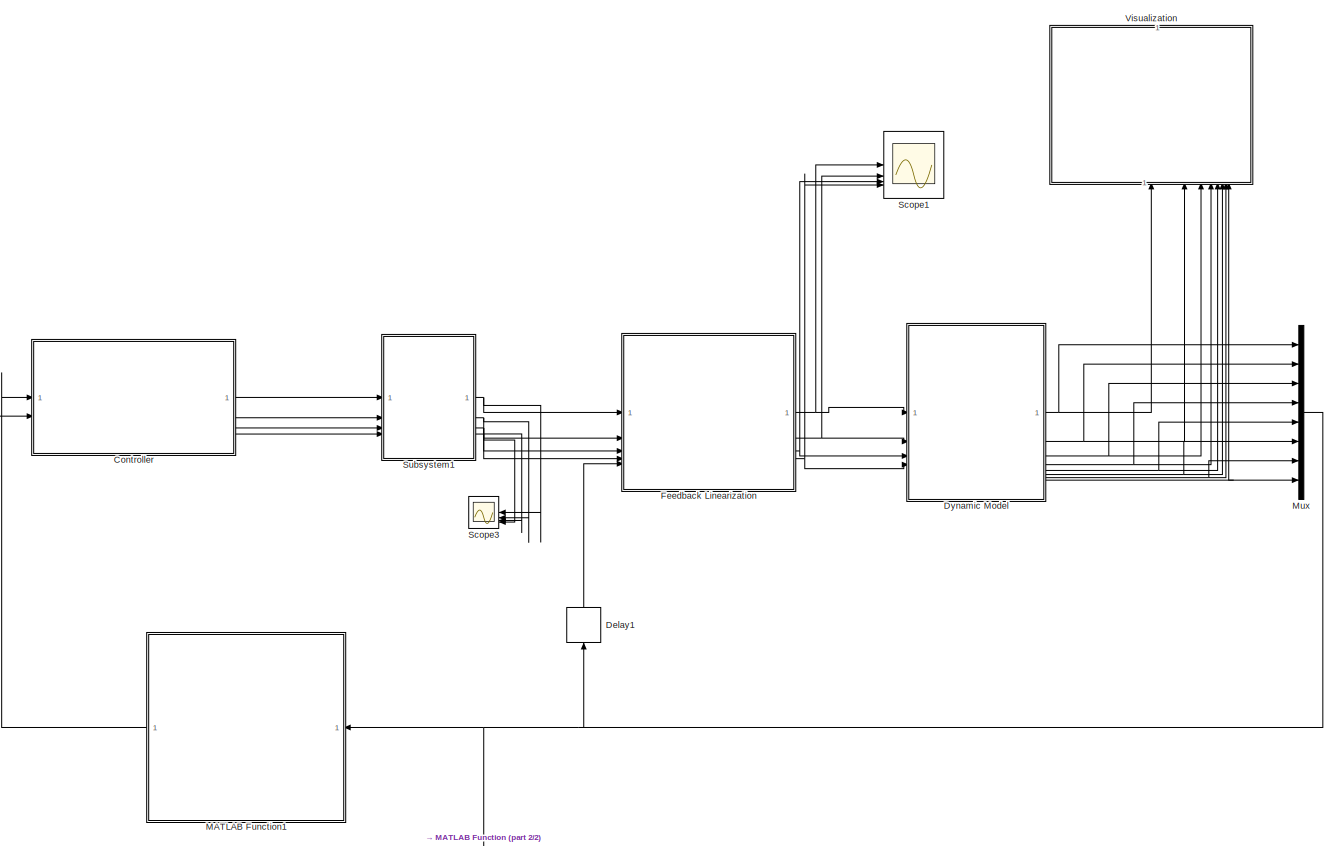
[diagram: root canvas - part 1/2, center side, full height]
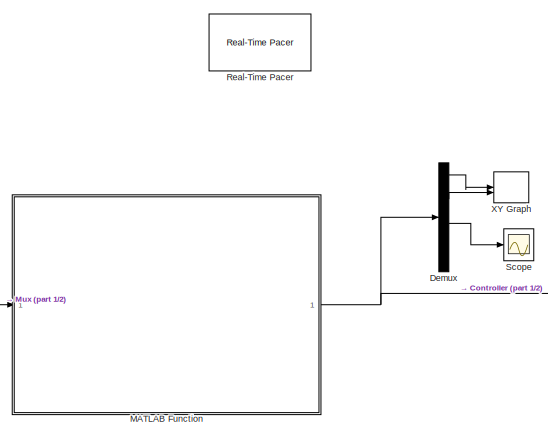
[diagram: root canvas - part 2/2, middle left region]
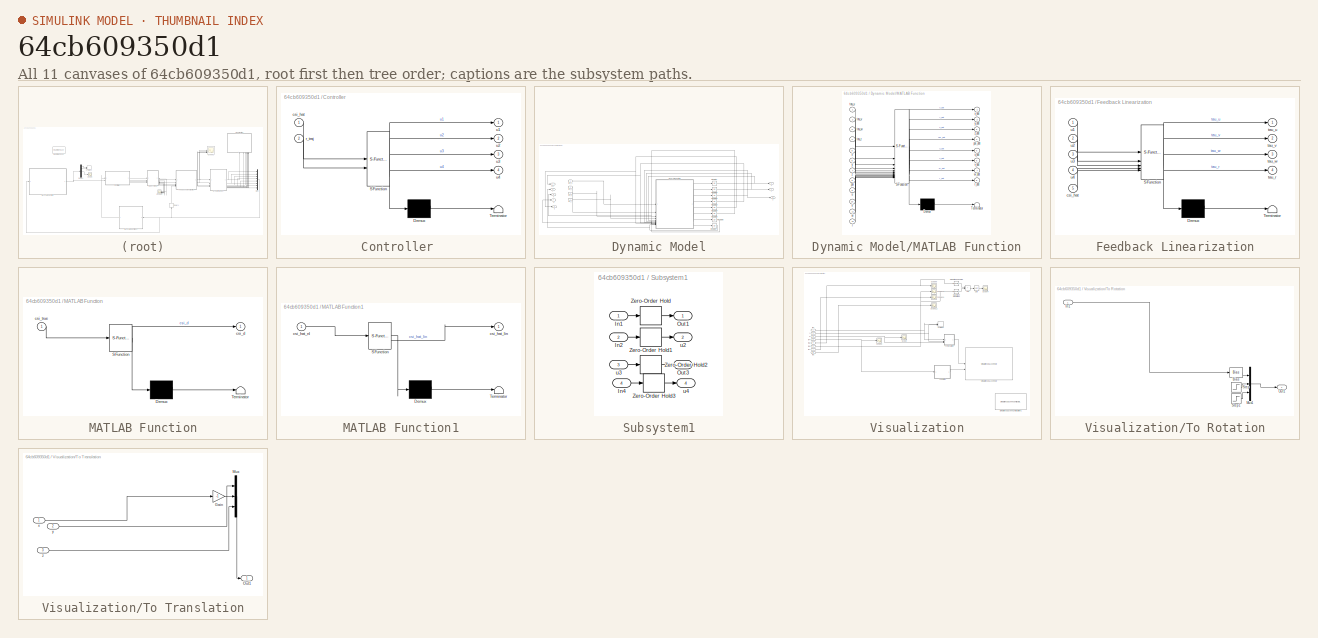
[diagram: thumbnail index - all 11 canvases of the model, root first then tree order]
MODEL slx_64cb609350d1
KIND model
CONFIG AbsTol = auto
CONFIG EnableMultiTasking = off
CONFIG FixedStep = auto
CONFIG MaxStep = auto
CONFIG MinStep = auto
CONFIG RelTol = 1e-3
CONFIG SampleTimeConstraint = Unconstrained
CONFIG SolverName = VariableStepAuto
CONFIG StartTime = 0.0
CONFIG StopTime = 50
BLOCK [SubSystem] Controller 
  ErrorFcn = Stateflow.Translate.translate
  LibrarySourceBlock = simulink/User-Defined\nFunctions/MATLAB Function
  PermitHierarchicalResolution = ExplicitOnly
  SFBlockType = MATLAB Function
  TreatAsAtomicUnit = on
BLOCK [Demux] Controller / Demux 
  Outputs = 1
BLOCK [S-Function] Controller / SFunction 
  EnableBusSupport = on
  FunctionName = sf_sfun
  Parameters = dt
  PortCounts = [2 5]
  SFcnIsStateOwnerBlock = off
  SFunctionDeploymentMode = off
  Tag = Stateflow S-Function 4
BLOCK [Terminator] Controller / Terminator 
BLOCK [Inport] Controller /csi_hat
BLOCK [Inport] Controller /r_traj
  Port = 2
BLOCK [Outport] Controller /u1
BLOCK [Outport] Controller /u2
  Port = 2
BLOCK [Outport] Controller /u3
  Port = 3
BLOCK [Outport] Controller /u4
  Port = 4
BLOCK [Delay] Delay1
  DelayLength = 1
  InitialCondition = [0 0 0 0 0 0 0 0]'
  InputPortMap = u0
  NameLocation = right
  SampleTime = dt
BLOCK [Demux] Demux
  Outputs = 8
BLOCK [SubSystem] Dynamic Model
BLOCK [Integrator] Dynamic Model/Integrator
BLOCK [Integrator] Dynamic Model/Integrator1
BLOCK [Integrator] Dynamic Model/Integrator2
BLOCK [Integrator] Dynamic Model/Integrator3
BLOCK [Integrator] Dynamic Model/Integrator4
BLOCK [Integrator] Dynamic Model/Integrator5
BLOCK [Integrator] Dynamic Model/Integrator6
BLOCK [Integrator] Dynamic Model/Integrator7
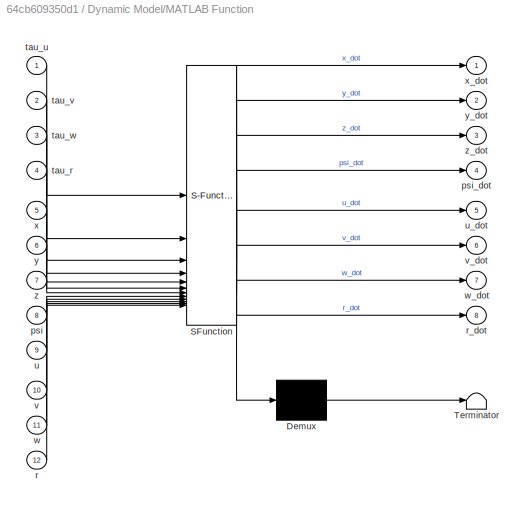
BLOCK [SubSystem] Dynamic Model/MATLAB Function
  ErrorFcn = Stateflow.Translate.translate
  LibrarySourceBlock = simulink/User-Defined\nFunctions/MATLAB Function
  PermitHierarchicalResolution = ExplicitOnly
  SFBlockType = MATLAB Function
  TreatAsAtomicUnit = on
BLOCK [Demux] Dynamic Model/MATLAB Function/ Demux 
  Outputs = 1
BLOCK [S-Function] Dynamic Model/MATLAB Function/ SFunction 
  EnableBusSupport = on
  FunctionName = sf_sfun
  PortCounts = [12 9]
  SFcnIsStateOwnerBlock = off
  SFunctionDeploymentMode = off
  Tag = Stateflow S-Function 2
BLOCK [Terminator] Dynamic Model/MATLAB Function/ Terminator 
BLOCK [Inport] Dynamic Model/MATLAB Function/psi
  Port = 8
BLOCK [Outport] Dynamic Model/MATLAB Function/psi_dot
  Port = 4
BLOCK [Inport] Dynamic Model/MATLAB Function/r
  Port = 12
BLOCK [Outport] Dynamic Model/MATLAB Function/r_dot
  Port = 8
BLOCK [Inport] Dynamic Model/MATLAB Function/tau_r
  Port = 4
BLOCK [Inport] Dynamic Model/MATLAB Function/tau_u
BLOCK [Inport] Dynamic Model/MATLAB Function/tau_v
  Port = 2
BLOCK [Inport] Dynamic Model/MATLAB Function/tau_w
  Port = 3
BLOCK [Inport] Dynamic Model/MATLAB Function/u
  Port = 9
BLOCK [Outport] Dynamic Model/MATLAB Function/u_dot
  Port = 5
BLOCK [Inport] Dynamic Model/MATLAB Function/v
  Port = 10
BLOCK [Outport] Dynamic Model/MATLAB Function/v_dot
  Port = 6
BLOCK [Inport] Dynamic Model/MATLAB Function/w
  Port = 11
BLOCK [Outport] Dynamic Model/MATLAB Function/w_dot
  Port = 7
BLOCK [Inport] Dynamic Model/MATLAB Function/x
  Port = 5
BLOCK [Outport] Dynamic Model/MATLAB Function/x_dot
BLOCK [Inport] Dynamic Model/MATLAB Function/y
  Port = 6
BLOCK [Outport] Dynamic Model/MATLAB Function/y_dot
  Port = 2
BLOCK [Inport] Dynamic Model/MATLAB Function/z
  Port = 7
BLOCK [Outport] Dynamic Model/MATLAB Function/z_dot
  Port = 3
BLOCK [Outport] Dynamic Model/psi
  Port = 4
BLOCK [Outport] Dynamic Model/r
  Port = 8
BLOCK [Inport] Dynamic Model/tau_r
  Port = 4
BLOCK [Inport] Dynamic Model/tau_u
BLOCK [Inport] Dynamic Model/tau_v
  Port = 2
BLOCK [Inport] Dynamic Model/tau_w
  Port = 3
BLOCK [Outport] Dynamic Model/u
  Port = 5
BLOCK [Outport] Dynamic Model/v
  Port = 6
BLOCK [Outport] Dynamic Model/w
  Port = 7
BLOCK [Outport] Dynamic Model/x
BLOCK [Outport] Dynamic Model/y
  Port = 2
BLOCK [Outport] Dynamic Model/z
  Port = 3
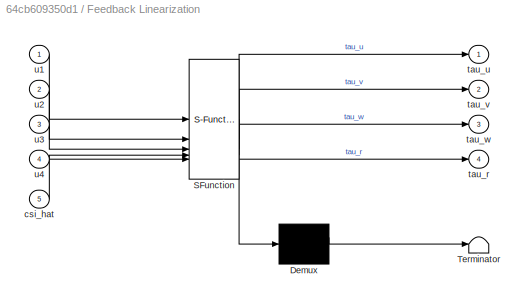
BLOCK [SubSystem] Feedback Linearization
  ErrorFcn = Stateflow.Translate.translate
  LibrarySourceBlock = simulink/User-Defined\nFunctions/MATLAB Function
  PermitHierarchicalResolution = ExplicitOnly
  SFBlockType = MATLAB Function
  TreatAsAtomicUnit = on
BLOCK [Demux] Feedback Linearization/ Demux 
  Outputs = 1
BLOCK [S-Function] Feedback Linearization/ SFunction 
  EnableBusSupport = on
  FunctionName = sf_sfun
  PortCounts = [5 5]
  SFcnIsStateOwnerBlock = off
  SFunctionDeploymentMode = off
  Tag = Stateflow S-Function 1
BLOCK [Terminator] Feedback Linearization/ Terminator 
BLOCK [Inport] Feedback Linearization/csi_hat
  Port = 5
BLOCK [Outport] Feedback Linearization/tau_r
  Port = 4
BLOCK [Outport] Feedback Linearization/tau_u
BLOCK [Outport] Feedback Linearization/tau_v
  Port = 2
BLOCK [Outport] Feedback Linearization/tau_w
  Port = 3
BLOCK [Inport] Feedback Linearization/u1
BLOCK [Inport] Feedback Linearization/u2
  Port = 2
BLOCK [Inport] Feedback Linearization/u3
  Port = 3
BLOCK [Inport] Feedback Linearization/u4
  Port = 4
BLOCK [SubSystem] MATLAB Function
  ErrorFcn = Stateflow.Translate.translate
  LibrarySourceBlock = simulink/User-Defined\nFunctions/MATLAB Function
  PermitHierarchicalResolution = ExplicitOnly
  SFBlockType = MATLAB Function
  TreatAsAtomicUnit = on
BLOCK [Demux] MATLAB Function/ Demux 
  Outputs = 1
BLOCK [S-Function] MATLAB Function/ SFunction 
  EnableBusSupport = on
  FunctionName = sf_sfun
  Parameters = t0
  PortCounts = [1 2]
  SFcnIsStateOwnerBlock = off
  SFunctionDeploymentMode = off
  Tag = Stateflow S-Function 3
BLOCK [Terminator] MATLAB Function/ Terminator 
BLOCK [Outport] MATLAB Function/csi_d
BLOCK [Inport] MATLAB Function/csi_true
BLOCK [SubSystem] MATLAB Function1
  ErrorFcn = Stateflow.Translate.translate
  LibrarySourceBlock = simulink/User-Defined\nFunctions/MATLAB Function
  NameLocation = top
  PermitHierarchicalResolution = ExplicitOnly
  SFBlockType = MATLAB Function
  TreatAsAtomicUnit = on
BLOCK [Demux] MATLAB Function1/ Demux 
  Outputs = 1
BLOCK [S-Function] MATLAB Function1/ SFunction 
  EnableBusSupport = on
  FunctionName = sf_sfun
  PortCounts = [1 2]
  SFcnIsStateOwnerBlock = off
  SFunctionDeploymentMode = off
  Tag = Stateflow S-Function 5
BLOCK [Terminator] MATLAB Function1/ Terminator 
BLOCK [Outport] MATLAB Function1/csi_hat_lin
BLOCK [Inport] MATLAB Function1/csi_hat_nl
BLOCK [Mux] Mux
  DisplayOption = bar
  Inputs = 8
BLOCK [Reference] Real-Time Pacer  REF=realtime_pacer_lib/Real-Time Pacer
  SourceBlock = realtime_pacer_lib/Real-Time Pacer
  SourceType = RealTime_Pacer
BLOCK [Scope] Scope
  Floating = off
  NumInputPorts = 1
  ScopeSpecificationString = Simulink.scopes.TimeScopeBlockCfg('CurrentConfiguration', extmgr.ConfigurationSet(extmgr.Configuration('Core','General UI',true),extmgr.Configuration('Core','Source UI',true),extmgr.Configuration('Sources','WiredSimulink',true,'DataLoggingVariableName','ScopeData1'),extmgr.Configuration('Visuals','Time Domain',true,'SerializedDisplays',{struct('MinYLimReal','2.4783','MaxYLimReal','2.52134','YLabel...<+1414ch>
BLOCK [Scope] Scope1
  Floating = off
  NumInputPorts = 4
  ScopeSpecificationString = Simulink.scopes.TimeScopeBlockCfg('CurrentConfiguration', extmgr.ConfigurationSet(extmgr.Configuration('Core','General UI',true),extmgr.Configuration('Core','Source UI',true),extmgr.Configuration('Sources','WiredSimulink',true,'DataLoggingVariableName','ScopeData7'),extmgr.Configuration('Visuals','Time Domain',true,'SerializedDisplays',{struct('MinYLimReal','-3.0755','MaxYLimReal','19.54977','YLab...<+3681ch>
BLOCK [Scope] Scope3
  Floating = off
  NameLocation = top
  NumInputPorts = 4
  ScopeSpecificationString = Simulink.scopes.TimeScopeBlockCfg('CurrentConfiguration', extmgr.ConfigurationSet(extmgr.Configuration('Core','General UI',true),extmgr.Configuration('Core','Source UI',true),extmgr.Configuration('Sources','WiredSimulink',true,'DataLoggingVariableName','ScopeData1'),extmgr.Configuration('Visuals','Time Domain',true,'SerializedDisplays',{struct('MinYLimReal','-0.16585','MaxYLimReal','1.12197','YLab...<+3589ch>
BLOCK [SubSystem] Subsystem1
BLOCK [Inport] Subsystem1/In1
BLOCK [Inport] Subsystem1/In2
  Port = 2
BLOCK [Inport] Subsystem1/In4
  Port = 4
BLOCK [Outport] Subsystem1/Out1
BLOCK [Outport] Subsystem1/Out3
  Port = 3
BLOCK [ZeroOrderHold] Subsystem1/Zero-Order Hold
  SampleTime = dt
BLOCK [ZeroOrderHold] Subsystem1/Zero-Order Hold1
  SampleTime = dt
BLOCK [ZeroOrderHold] Subsystem1/Zero-Order Hold2
  SampleTime = dt
BLOCK [ZeroOrderHold] Subsystem1/Zero-Order Hold3
  SampleTime = dt
BLOCK [Outport] Subsystem1/u2
  Port = 2
BLOCK [Inport] Subsystem1/u3
  Port = 3
BLOCK [Outport] Subsystem1/u4
  Port = 4
BLOCK [SubSystem] Visualization
  NameLocation = right
BLOCK [Sum] Visualization/Add
  IconShape = rectangular
BLOCK [Inport] Visualization/In1
BLOCK [Inport] Visualization/In4
  Port = 4
BLOCK [Inport] Visualization/In5
  Port = 5
BLOCK [Inport] Visualization/In6
  Port = 6
BLOCK [Inport] Visualization/In7
  Port = 7
BLOCK [Inport] Visualization/In8
  Port = 8
BLOCK [Math] Visualization/Magnitude Squared
  Operator = magnitude^2
BLOCK [Math] Visualization/Magnitude Squared1
  Operator = magnitude^2
BLOCK [Scope] Visualization/Scope
  Floating = off
  NameLocation = right
  NumInputPorts = 1
  ScopeSpecificationString = Simulink.scopes.TimeScopeBlockCfg('CurrentConfiguration', extmgr.ConfigurationSet(extmgr.Configuration('Core','General UI',true),extmgr.Configuration('Core','Source UI',true),extmgr.Configuration('Sources','WiredSimulink',true,'DataLoggingVariableName','ScopeData1'),extmgr.Configuration('Visuals','Time Domain',true,'SerializedDisplays',{struct('MinYLimReal','-0.49396','MaxYLimReal','4.44561','YLab...<+1433ch>
BLOCK [Scope] Visualization/Scope10
  Floating = off
  NameLocation = right
  NumInputPorts = 1
  ScopeSpecificationString = Simulink.scopes.TimeScopeBlockCfg('CurrentConfiguration', extmgr.ConfigurationSet(extmgr.Configuration('Core','General UI',true),extmgr.Configuration('Core','Source UI',true),extmgr.Configuration('Sources','WiredSimulink',true,'DataLoggingVariableName','ScopeData2'),extmgr.Configuration('Visuals','Time Domain',true,'SerializedDisplays',{struct('MinYLimReal','-0.30172','MaxYLimReal','0.29875','YLab...<+1418ch>
BLOCK [Scope] Visualization/Scope11
  Floating = off
  NameLocation = right
  NumInputPorts = 1
  ScopeSpecificationString = Simulink.scopes.TimeScopeBlockCfg('CurrentConfiguration', extmgr.ConfigurationSet(extmgr.Configuration('Core','General UI',true),extmgr.Configuration('Core','Source UI',true),extmgr.Configuration('Sources','WiredSimulink',true,'DataLoggingVariableName','ScopeData3'),extmgr.Configuration('Visuals','Time Domain',true,'SerializedDisplays',{struct('MinYLimReal','-0.04025','MaxYLimReal','0.36226','YLab...<+1420ch>
BLOCK [Scope] Visualization/Scope12
  Floating = off
  NameLocation = right
  NumInputPorts = 1
  ScopeSpecificationString = Simulink.scopes.TimeScopeBlockCfg('CurrentConfiguration', extmgr.ConfigurationSet(extmgr.Configuration('Core','General UI',true),extmgr.Configuration('Core','Source UI',true),extmgr.Configuration('Sources','WiredSimulink',true,'DataLoggingVariableName','ScopeData4'),extmgr.Configuration('Visuals','Time Domain',true,'SerializedDisplays',{struct('MinYLimReal','-0.12112','MaxYLimReal','0.11908','YLab...<+1420ch>
BLOCK [Scope] Visualization/Scope2
  Floating = off
  NameLocation = right
  NumInputPorts = 1
  ScopeSpecificationString = Simulink.scopes.TimeScopeBlockCfg('CurrentConfiguration', extmgr.ConfigurationSet(extmgr.Configuration('Core','General UI',true),extmgr.Configuration('Core','Source UI',true),extmgr.Configuration('Sources','WiredSimulink',true,'DataLoggingVariableName','ScopeData5'),extmgr.Configuration('Visuals','Time Domain',true,'SerializedDisplays',{struct('MinYLimReal','-0.30722','MaxYLimReal','1.00908','YLab...<+1416ch>
BLOCK [Scope] Visualization/Scope4
  Floating = off
  NumInputPorts = 1
  ScopeSpecificationString = Simulink.scopes.TimeScopeBlockCfg('CurrentConfiguration', extmgr.ConfigurationSet(extmgr.Configuration('Core','General UI',true),extmgr.Configuration('Core','Source UI',true),extmgr.Configuration('Sources','WiredSimulink',true,'DataLoggingVariableName','ScopeData1'),extmgr.Configuration('Visuals','Time Domain',true,'SerializedDisplays',{struct('MinYLimReal','-0.05754','MaxYLimReal','0.51785','YLab...<+1421ch>
BLOCK [Scope] Visualization/Scope9
  Floating = off
  NumInputPorts = 1
  ScopeSpecificationString = Simulink.scopes.TimeScopeBlockCfg('CurrentConfiguration', extmgr.ConfigurationSet(extmgr.Configuration('Core','General UI',true),extmgr.Configuration('Core','Source UI',true),extmgr.Configuration('Sources','WiredSimulink',true,'DataLoggingVariableName','ScopeData6'),extmgr.Configuration('Visuals','Time Domain',true,'SerializedDisplays',{struct('MinYLimReal','-0.05921','MaxYLimReal','0.53288','YLab...<+1538ch>
BLOCK [Reference] Visualization/Simulation 3D Scene Configuration1  REF=sim3dlib/Simulation 3D Scene Configuration
  LibrarySourceBlock = sl3dlib/Simulation 3D/Simulation 3D Scene Configuration
  Priority = 0
  SourceBlock = sim3dlib/Simulation 3D Scene Configuration
  SourceType = Simulation 3D Scene Configuration
BLOCK [Reference] Visualization/Simulation 3D UAV Vehicle  REF=uavsim3dlib/Simulation 3D UAV Vehicle
  Priority = -1
  SourceBlock = uavsim3dlib/Simulation 3D UAV Vehicle
  SourceType = Simulation 3D UAV Vehicle
BLOCK [Sqrt] Visualization/Sqrt
BLOCK [SubSystem] Visualization/To Rotation
BLOCK [Bias] Visualization/To Rotation/Bias
  Bias = -pi/2
  SaturateOnIntegerOverflow = off
BLOCK [Inport] Visualization/To Rotation/In1
BLOCK [Mux] Visualization/To Rotation/Mux1
  DisplayOption = bar
  Inputs = 3
BLOCK [Outport] Visualization/To Rotation/Out1
BLOCK [Step] Visualization/To Rotation/Step
  After = 0
  SampleTime = 0
BLOCK [Step] Visualization/To Rotation/Step1
  After = 0
  SampleTime = 0
BLOCK [SubSystem] Visualization/To Translation
BLOCK [Gain] Visualization/To Translation/Gain
  Gain = -1
BLOCK [Mux] Visualization/To Translation/Mux
  DisplayOption = bar
  Inputs = 3
BLOCK [Outport] Visualization/To Translation/Out1
BLOCK [Inport] Visualization/To Translation/x
BLOCK [Inport] Visualization/To Translation/y
  Port = 2
BLOCK [Inport] Visualization/To Translation/z
  Port = 3
BLOCK [Record] Visualization/XY Graph
  CompatibilityTag = XY
  FileSettingsInternal = {"entries":[{"content":{"excelSettings":{"content":{},"type":"Streamout.ExcelSettings"}},"type":"Streamout.FileSettingStorage","uuid":""}],"packageUris":["http:\/\/schema.mathworks.com\/mf0\/streamout_blocks\/R2020a"],"version":"1.0"}
  Layout = [1 1]
  SignalsInternal = {"entries":[{"content":{"signals":[{"content":{"blockPath":[],"channel":[],"dimensions":[1,1],"domain":"","lineColor":"#0072bd","plots":[1],"port":1,"sid":[""],"signalID":10906,"signalName":"In1"},"type":"RecordBlkView.Signal","uuid":""},{"content":{"blockPath":[],"channel":[],"dimensions":[1,1],"domain":"","lineColor":"#d95319","plots":[1],"port":2,"sid":[""],"signalID":10910,"signalName":"y"},"t...<+184ch>
  VisualizationBindings = {"xyplotplugin":{"info":[{"series":[{"bindingParametersList":[{"parameter":"X-Axis","signalID":10906,"signalName":"In1"},{"parameter":"Y-Axis","signalID":10910,"signalName":"y"}],"seriesID":32775}],"subplotID":1}]}}
BLOCK [Inport] Visualization/y
  Port = 2
BLOCK [Inport] Visualization/z
  Port = 3
BLOCK [Record] XY Graph
  CompatibilityTag = XY
  FileSettingsInternal = {"entries":[{"content":{"excelSettings":{"content":{},"type":"Streamout.ExcelSettings"}},"type":"Streamout.FileSettingStorage","uuid":""}],"packageUris":["http:\/\/schema.mathworks.com\/mf0\/streamout_blocks\/R2020a"],"version":"1.0"}
  Layout = [1 1]
  SignalsInternal = {"entries":[{"content":{"signals":[{"content":{"blockPath":[],"channel":[],"dimensions":[1,1],"domain":"","lineColor":"#a2142f","plots":[1],"port":1,"sid":[""],"signalID":10914,"signalName":"Demux:1"},"type":"RecordBlkView.Signal","uuid":""},{"content":{"blockPath":[],"channel":[],"dimensions":[1,1],"domain":"","lineColor":"#139fff","plots":[1],"port":2,"sid":[""],"signalID":10918,"signalName":"De...<+194ch>
  VisualizationBindings = {"xyplotplugin":{"info":[{"series":[{"bindingParametersList":[{"parameter":"X-Axis","signalID":10914,"signalName":"Demux:1"},{"parameter":"Y-Axis","signalID":10918,"signalName":"Demux:3"}],"seriesID":62600}],"subplotID":1}]}}
LINE Controller :1 -> Subsystem1:1
LINE Controller :2 -> Subsystem1:2
LINE Controller :3 -> Subsystem1:3
LINE Controller :4 -> Subsystem1:4
LINE Delay1:1 -> Feedback Linearization:5
LINE Demux:1 -> XY Graph:1
LINE Demux:3 -> XY Graph:2
LINE Demux:5 -> Scope:1
NET Dynamic Model/Integrator1:1 -> Dynamic Model/MATLAB Function:6, Dynamic Model/y:1
NET Dynamic Model/Integrator2:1 -> Dynamic Model/MATLAB Function:7, Dynamic Model/z:1
NET Dynamic Model/Integrator3:1 -> Dynamic Model/MATLAB Function:8, Dynamic Model/psi:1
NET Dynamic Model/Integrator4:1 -> Dynamic Model/MATLAB Function:9, Dynamic Model/u:1
NET Dynamic Model/Integrator5:1 -> Dynamic Model/MATLAB Function:10, Dynamic Model/v:1
NET Dynamic Model/Integrator6:1 -> Dynamic Model/MATLAB Function:11, Dynamic Model/w:1
NET Dynamic Model/Integrator7:1 -> Dynamic Model/MATLAB Function:12, Dynamic Model/r:1
NET Dynamic Model/Integrator:1 -> Dynamic Model/MATLAB Function:5, Dynamic Model/x:1
LINE Dynamic Model/MATLAB Function:1 -> Dynamic Model/Integrator:1
LINE Dynamic Model/MATLAB Function:2 -> Dynamic Model/Integrator1:1
LINE Dynamic Model/MATLAB Function:3 -> Dynamic Model/Integrator2:1
LINE Dynamic Model/MATLAB Function:4 -> Dynamic Model/Integrator3:1
LINE Dynamic Model/MATLAB Function:5 -> Dynamic Model/Integrator4:1
LINE Dynamic Model/MATLAB Function:6 -> Dynamic Model/Integrator5:1
LINE Dynamic Model/MATLAB Function:7 -> Dynamic Model/Integrator6:1
LINE Dynamic Model/MATLAB Function:8 -> Dynamic Model/Integrator7:1
LINE Dynamic Model/tau_r:1 -> Dynamic Model/MATLAB Function:4
LINE Dynamic Model/tau_u:1 -> Dynamic Model/MATLAB Function:1
LINE Dynamic Model/tau_v:1 -> Dynamic Model/MATLAB Function:2
LINE Dynamic Model/tau_w:1 -> Dynamic Model/MATLAB Function:3
NET Dynamic Model:1 -> Mux:1, Visualization:1
NET Dynamic Model:2 -> Mux:2, Visualization:2
NET Dynamic Model:3 -> Mux:3, Visualization:3
NET Dynamic Model:4 -> Mux:4, Visualization:4
NET Dynamic Model:5 -> Mux:5, Visualization:5
NET Dynamic Model:6 -> Mux:6, Visualization:6
NET Dynamic Model:7 -> Mux:7, Visualization:7
NET Dynamic Model:8 -> Mux:8, Visualization:8
NET Feedback Linearization:1 -> Dynamic Model:1, Scope1:1
NET Feedback Linearization:2 -> Dynamic Model:2, Scope1:2
NET Feedback Linearization:3 -> Dynamic Model:3, Scope1:3
NET Feedback Linearization:4 -> Dynamic Model:4, Scope1:4
LINE MATLAB Function1:1 -> Controller :1
NET MATLAB Function:1 -> Controller :2, Demux:1
NET Mux:1 -> Delay1:1, MATLAB Function1:1, MATLAB Function:1
LINE Subsystem1/In1:1 -> Subsystem1/Zero-Order Hold:1
LINE Subsystem1/In2:1 -> Subsystem1/Zero-Order Hold1:1
LINE Subsystem1/In4:1 -> Subsystem1/Zero-Order Hold3:1
LINE Subsystem1/Zero-Order Hold1:1 -> Subsystem1/u2:1
LINE Subsystem1/Zero-Order Hold2:1 -> Subsystem1/Out3:1
LINE Subsystem1/Zero-Order Hold3:1 -> Subsystem1/u4:1
LINE Subsystem1/Zero-Order Hold:1 -> Subsystem1/Out1:1
LINE Subsystem1/u3:1 -> Subsystem1/Zero-Order Hold2:1
NET Subsystem1:1 -> Feedback Linearization:1, Scope3:1
NET Subsystem1:2 -> Feedback Linearization:2, Scope3:2
NET Subsystem1:3 -> Feedback Linearization:3, Scope3:3
NET Subsystem1:4 -> Feedback Linearization:4, Scope3:4
LINE Visualization/Add:1 -> Visualization/Sqrt:1
NET Visualization/In1:1 -> Visualization/To Translation:1, Visualization/XY Graph:1
NET Visualization/In4:1 -> Visualization/Scope2:1, Visualization/To Rotation:1
NET Visualization/In5:1 -> Visualization/Magnitude Squared:1, Visualization/Scope9:1
NET Visualization/In6:1 -> Visualization/Magnitude Squared1:1, Visualization/Scope10:1
LINE Visualization/In7:1 -> Visualization/Scope11:1
LINE Visualization/In8:1 -> Visualization/Scope12:1
LINE Visualization/Magnitude Squared1:1 -> Visualization/Add:2
LINE Visualization/Magnitude Squared:1 -> Visualization/Add:1
LINE Visualization/Sqrt:1 -> Visualization/Scope4:1
LINE Visualization/To Rotation/Bias:1 -> Visualization/To Rotation/Mux1:1
LINE Visualization/To Rotation/In1:1 -> Visualization/To Rotation/Bias:1
LINE Visualization/To Rotation/Mux1:1 -> Visualization/To Rotation/Out1:1
LINE Visualization/To Rotation/Step1:1 -> Visualization/To Rotation/Mux1:3
LINE Visualization/To Rotation/Step:1 -> Visualization/To Rotation/Mux1:2
LINE Visualization/To Rotation:1 -> Visualization/Simulation 3D UAV Vehicle:2
LINE Visualization/To Translation/Gain:1 -> Visualization/To Translation/Mux:2
LINE Visualization/To Translation/Mux:1 -> Visualization/To Translation/Out1:1
LINE Visualization/To Translation/x:1 -> Visualization/To Translation/Gain:1
LINE Visualization/To Translation/y:1 -> Visualization/To Translation/Mux:1
LINE Visualization/To Translation/z:1 -> Visualization/To Translation/Mux:3
LINE Visualization/To Translation:1 -> Visualization/Simulation 3D UAV Vehicle:1
NET Visualization/y:1 -> Visualization/To Translation:2, Visualization/XY Graph:2
NET Visualization/z:1 -> Visualization/Scope:1, Visualization/To Translation:3
note: NET lines group one-source signal fan-out (src -> all destinations, sorted); 1:1 wires keep LINE
CHART Feedback Linearization states=1 transitions=1
  STATE_LABEL 'eML_blk_kernel()'
  STATE_LABEL 'SCRIPT:\nfunction [tau_u,tau_v,tau_w,tau_r] = LinFeed(u1,u2,u3,u4,csi_hat)\n\npsi = csi_hat(4);\nu = csi_hat(5);\nv = csi_hat(6);\nw = csi_hat(7);\nr = csi_hat(8);\n\nm = 12;\nd = 0.338;\nl = 0.457;\n\nI = 1/12*m*(d^2+l^2);\n\nY_v_dot = 0;\nY_r = 0;\nX_u_dot = 0;\nX_u = 0;\nY_v = 0;\nZ_w = 0;\nN_r = 0;\nN_r_r = 0;\n\ntau_u = (m*cos(psi)*(u1 + r*(v*cos(psi) + u*sin(psi)) - (cos(psi)*(X_u*u - r*(Y_r*r + Y_v_dot*v)))/m + (s...<+657ch>'
CHART Dynamic Model/MATLAB Function states=1 transitions=1
  STATE_LABEL 'eML_blk_kernel()'
  STATE_LABEL 'SCRIPT:\nfunction [x_dot,y_dot,z_dot,psi_dot,u_dot,v_dot,w_dot,r_dot] = Dynamics(tau_u,tau_v,tau_w,tau_r,x,y,z,psi,u,v,w,r)\n\nm = 12;\nd = 0.338;\nl = 0.457;\n\nI = 1/12*m*(d^2+l^2);\n\nY_v_dot = 0;\nY_r = 0;\nX_u_dot = 0;\nX_u = 0;\nY_v = 0;\nZ_w = 0;\nN_r = 0;\nN_r_r = 0;\n\n\nM = diag([m m m I]);\nC = [0 0 0 Y_v_dot*v + Y_r*r;\n     0 0 0 -X_u_dot*u;\n     0 0 0 0;\n     -Y_v_dot*v-Y_r*r X_u_dot*u 0 0];\nD = diag([-X...<+394ch>'
CHART MATLAB Function states=1 transitions=1
  STATE_LABEL 'eML_blk_kernel()'
  STATE_LABEL 'SCRIPT:\nfunction csi_d  = TrajectoryTest(csi_true,t0)\n    x = [];\n    y = [];\n    z = [];\n    x_true = csi_true(1);\n    y_true = csi_true(2);\n    z_true = csi_true(3);\n    psi = [];\n\n\n    %% INTERPOLAZIONE CON SPLINE CUBICHE\n    % Punti di Interpolazione\n    x1 = 0;\n    y1 = 0;\n    z1 = 2;\n    x2 = 10;\n    y2 = 5;\n    z2 = 2;\n    x3 = 15;\n    y3 = 0;\n    z3 = 4;\n    J_eval = [];\n    r = [];\n    \n ...<+2917ch>'
CHART Controller  states=1 transitions=1
  STATE_LABEL 'eML_blk_kernel()'
  STATE_LABEL 'SCRIPT:\nfunction [u1,u2,u3,u4] = MPC(csi_hat,r_traj,dt)\n% in tempo discreto\nA = dt*blkdiag([0 1;0 0],[0 1;0 0],[0 1;0 0],[0 1;0 0]) + eye(8,8);\nB = dt*blkdiag([0;1],[0;1],[0;1],[0;1]);\nC = blkdiag([1 0;0 1],[1 0;0 1],[1 0;0 1],[1 0;0 1]);\nNp = 4;\nNc = 4;\nZero = zeros(8,4);\nPHI = [C*B Zero Zero Zero ; \n        C*A*B C*B Zero Zero; \n        C*A^2*B C*A*B C*B Zero; \n        C*A^3*B C*A^2*B C*A*B C*B]...<+2346ch>'
CHART MATLAB Function1 states=1 transitions=1
  STATE_LABEL 'eML_blk_kernel()'
  STATE_LABEL 'SCRIPT:\nfunction csi_hat_lin = VariableTrans(csi_hat_nl)\n\n    x = csi_hat_nl(1);\n    y = csi_hat_nl(2);\n    z = csi_hat_nl(3);\n    psi = csi_hat_nl(4);\n    x_dot = csi_hat_nl(5)*cos(csi_hat_nl(4)) - csi_hat_nl(6)*sin(csi_hat_nl(4));\n    y_dot = csi_hat_nl(5)*sin(csi_hat_nl(4)) + csi_hat_nl(6)*cos(csi_hat_nl(4));\n    z_dot = csi_hat_nl(7);\n    psi_dot = csi_hat_nl(8);\n\n    csi_hat_lin = [x  x_dot y...<+30ch>'
CHART  states=0 transitions=0
CHART  states=0 transitions=0
CHART  states=0 transitions=0
CHART  states=0 transitions=0
CHART  states=0 transitions=0
